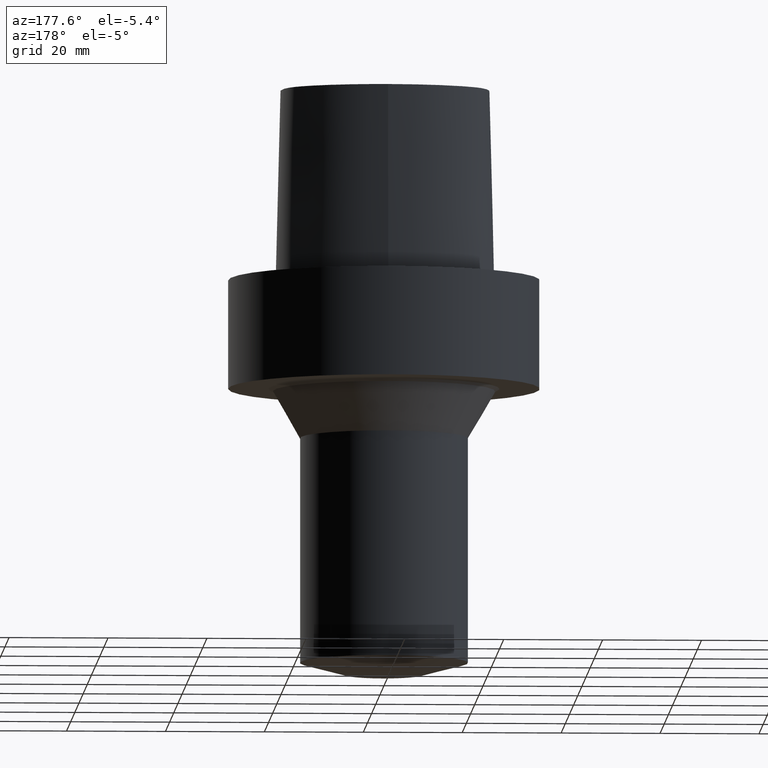
[diagram: clean part render]
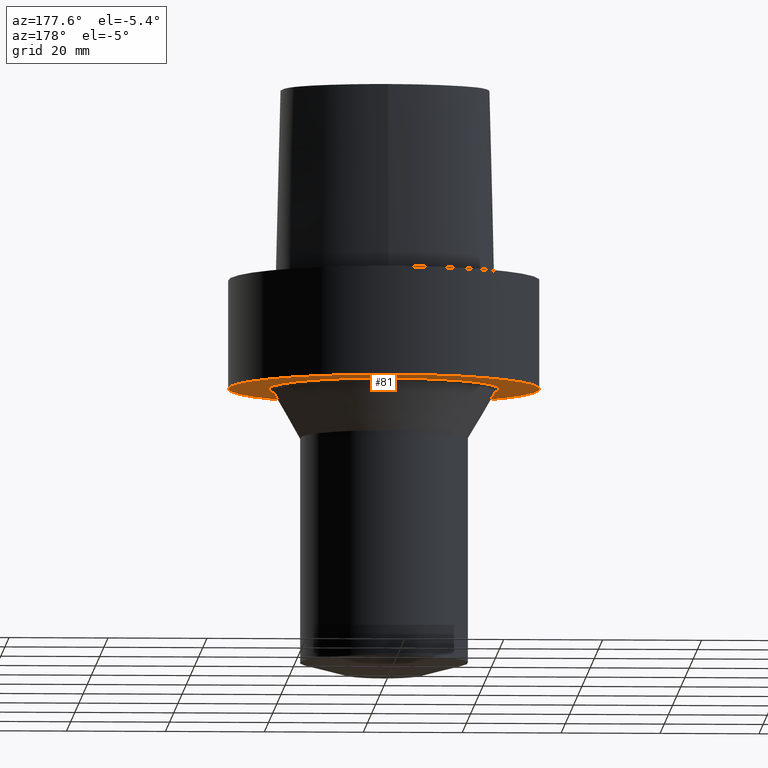
[diagram: same view with one face highlighted and labeled with its STEP entity id]
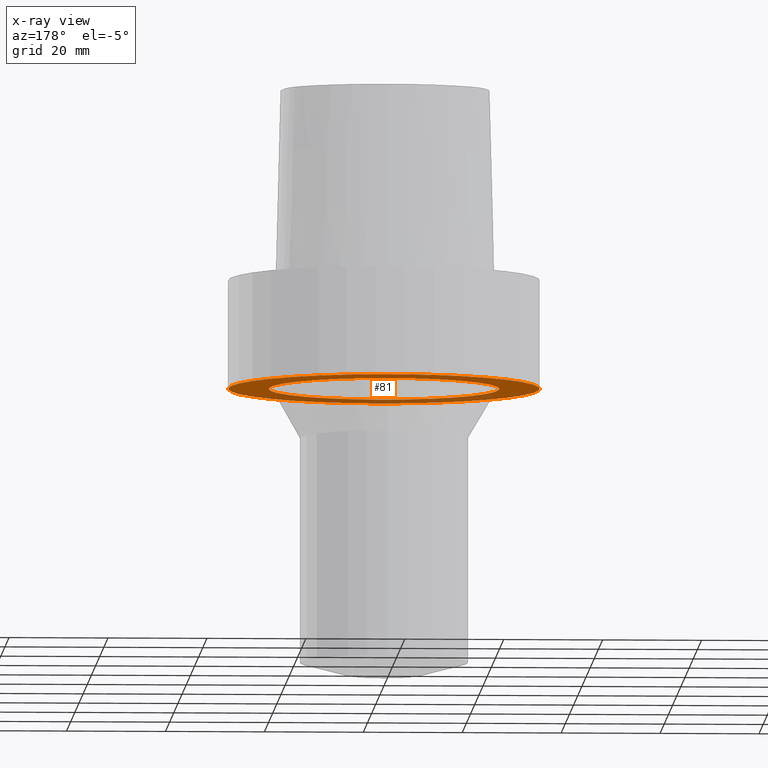
[diagram: x-ray of the same camera — body ghosted, the highlighted face saturated]
A machine part, auxiliary view. The second image highlights one B-rep face of the part: STEP entity #81.
The next image is the same camera in x-ray: the body ghosted, the highlighted face saturated — about 29% of this face is hidden behind the body in this view.
In plain terms, the highlighted planar face has unit normal (0, 0, -1).
Its self-contained STEP definition (entity closure, byte-faithful):
#81=ADVANCED_FACE('',(#106,#107),#108,.T.);
#106=FACE_OUTER_BOUND('',#137,.T.);
#107=FACE_BOUND('',#138,.T.);
#108=PLANE('',#139);
#137=EDGE_LOOP('',(#320));
#138=EDGE_LOOP('',(#321));
#139=AXIS2_PLACEMENT_3D('',#322,#323,#324);
#320=ORIENTED_EDGE('',*,*,#357,.T.);
#321=ORIENTED_EDGE('',*,*,#356,.F.);
#322=CARTESIAN_POINT('',(1.347111E-015,27.42167648,-22.0));
#323=DIRECTION('',(0.0,0.0,-1.0));
#324=DIRECTION('',(0.0,-1.0,0.0));
#356=EDGE_CURVE('',#379,#379,#380,.T.);
#357=EDGE_CURVE('',#381,#381,#382,.T.);
#379=VERTEX_POINT('',#466);
#380=CIRCLE('',#467,23.35085296);
#381=VERTEX_POINT('',#468);
#382=CIRCLE('',#469,31.4925);
#466=CARTESIAN_POINT('',(-1.497141E-015,-23.35085296,-22.0));
#467=AXIS2_PLACEMENT_3D('',#528,#529,#530);
#468=CARTESIAN_POINT('',(-3.183036E-015,-31.4925,-22.0));
#469=AXIS2_PLACEMENT_3D('',#531,#532,#533);
#528=CARTESIAN_POINT('',(1.347111E-015,2.694223E-015,-22.0));
#529=DIRECTION('',(0.0,0.0,-1.0));
#530=DIRECTION('',(0.0,1.0,0.0));
#531=CARTESIAN_POINT('',(1.347111E-015,2.694223E-015,-22.0));
#532=DIRECTION('',(0.0,0.0,-1.0));
#533=DIRECTION('',(0.0,1.0,0.0));